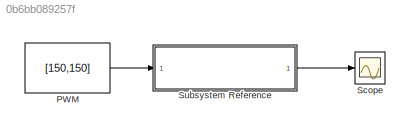
MODEL slx_0b6bb089257f
KIND model
CONFIG AbsTol = auto
CONFIG EnableMultiTasking = on
CONFIG FixedStep = 0.01
CONFIG MaxStep = auto
CONFIG MinStep = auto
CONFIG RelTol = 1e-3
CONFIG SampleTimeConstraint = Unconstrained
CONFIG SolverName = FixedStepAuto
CONFIG StartTime = 0.0
CONFIG StopTime = inf
BLOCK [Constant] PWM
  SampleTime = 0.01
  Value = [150,150]
BLOCK [Scope] Scope
  Floating = off
  NumInputPorts = 1
  ScopeSpecificationString = Simulink.scopes.TimeScopeBlockCfg('CurrentConfiguration', extmgr.ConfigurationSet(extmgr.Configuration('Core','General UI',true),extmgr.Configuration('Core','Source UI',true),extmgr.Configuration('Sources','WiredSimulink',true),extmgr.Configuration('Visuals','Time Domain',true,'SerializedDisplays',{struct('MinYLimReal','-0.03922','MaxYLimReal','0.35297','YLabelReal','','MinYLimMag','0.00000','MaxY...<+1842ch>
BLOCK [SubSystem] Subsystem Reference
  ReferencedSubsystem = PieroCP
LINE PWM:1 -> Subsystem Reference:1
LINE Subsystem Reference:1 -> Scope:1
